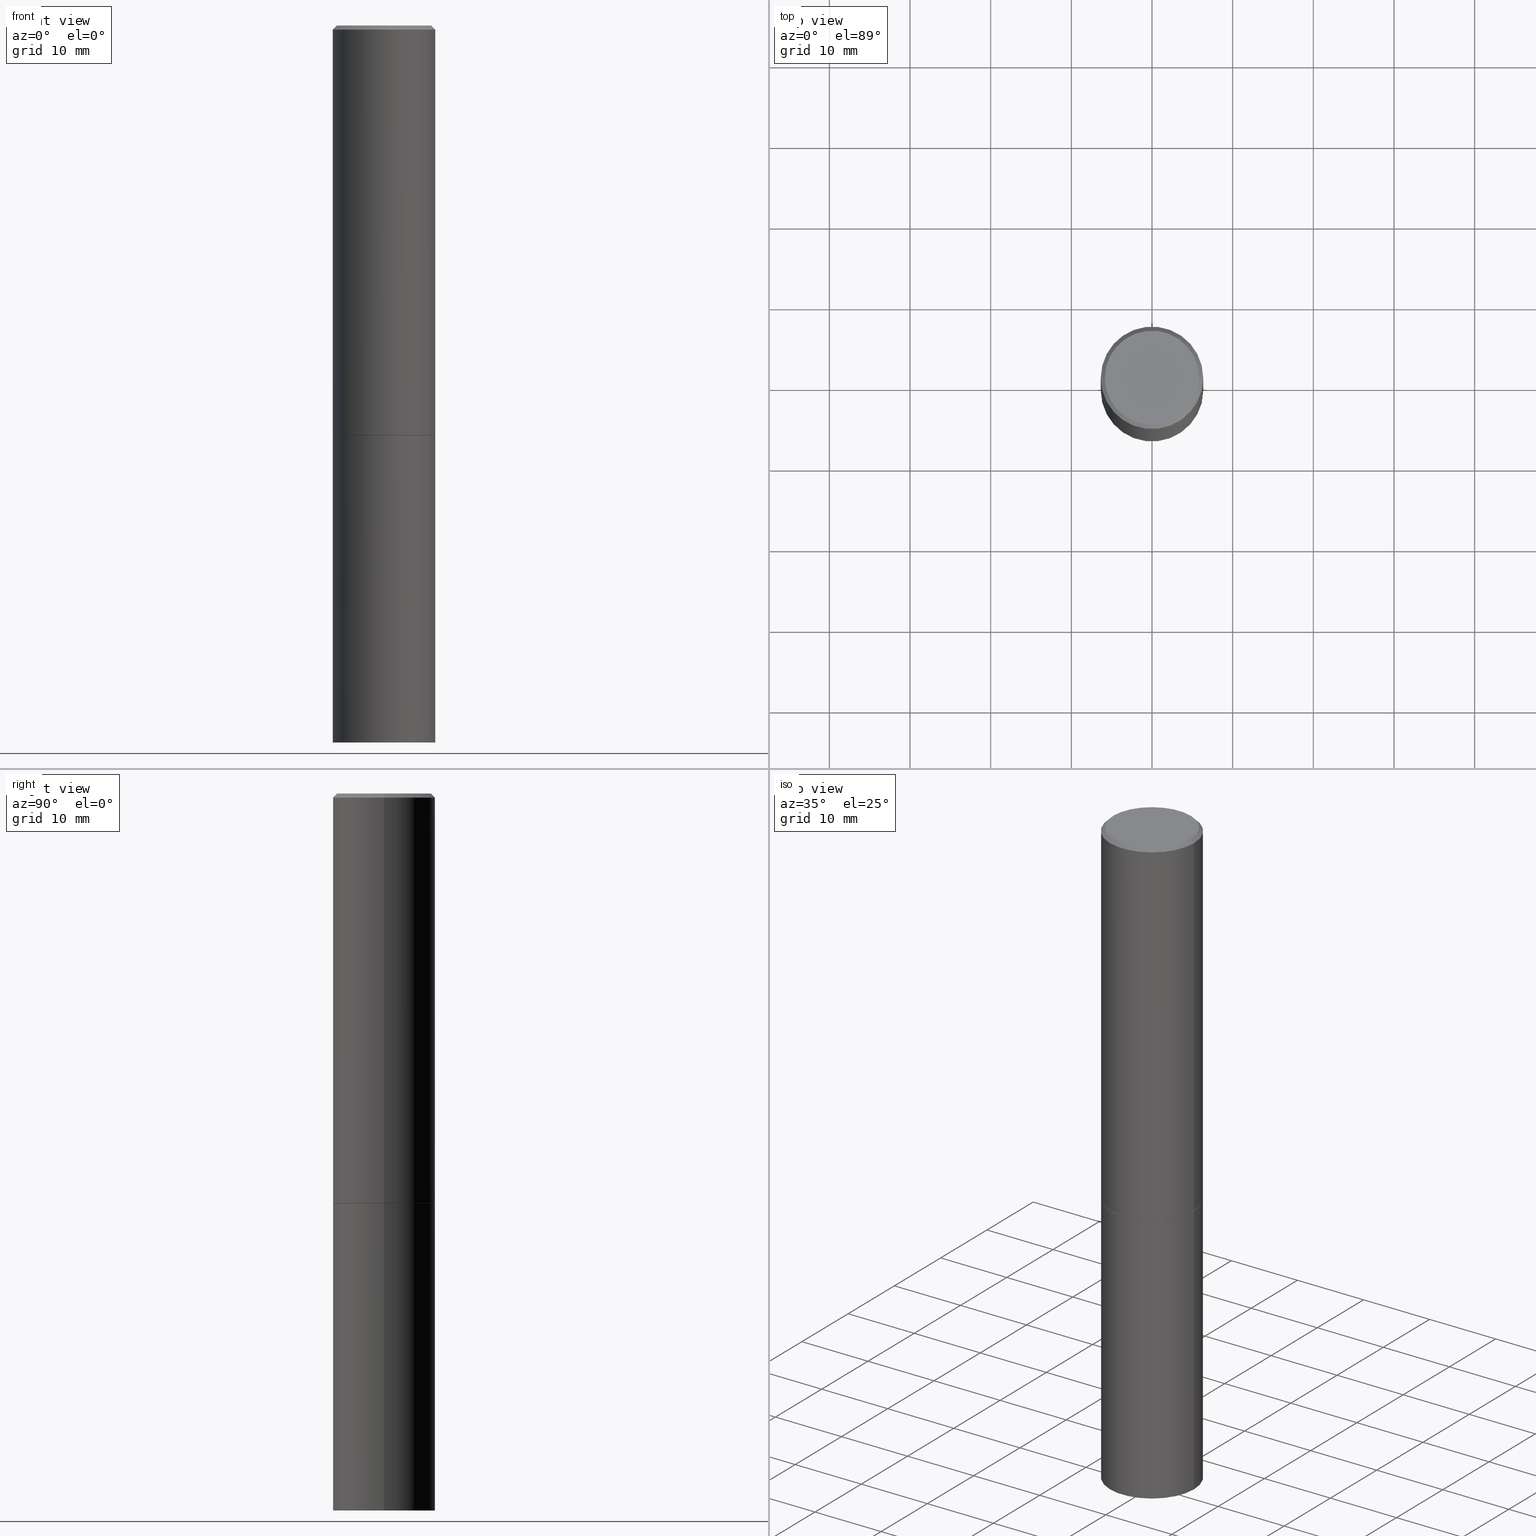
[diagram: canonical four-view strip — front | top / right | iso, engineering-drawing reading convention]
A machine part, canonical four-view strip (front | top / right | iso — engineering-drawing reading convention). The complete STEP part file that produces these views, byte-faithful:
ISO-10303-21;
HEADER;
FILE_DESCRIPTION (( 'STEP AP203' ),
    '1' );
FILE_NAME ('37508.STEP',
    '2024-02-27T22:02:45',
    ( '' ),
    ( '' ),
    'SwSTEP 2.0',
    'SolidWorks 2023',
    '' );
FILE_SCHEMA (( 'CONFIG_CONTROL_DESIGN' ));
ENDSEC;

DATA;
#1 = AXIS2_PLACEMENT_3D ( 'NONE', #301, #50, #27 ) ;
#2 = CARTESIAN_POINT ( 'NONE',  ( 4.890937612370288047E-31, -6.982962677686311331E-17, -0.02000000000000005940 ) ) ;
#3 = APPROVAL ( #162, 'UNSPECIFIED' ) ;
#4 = LINE ( 'NONE', #314, #134 ) ;
#5 = CARTESIAN_POINT ( 'NONE',  ( 0.000000000000000000, 0.000000000000000000, 0.000000000000000000 ) ) ;
#6 = MANIFOLD_SOLID_BREP ( 'Body-Move/Copy2[1]', #326 ) ;
#7 = AXIS2_PLACEMENT_3D ( 'NONE', #220, #305, #144 ) ;
#8 = PLANE ( 'NONE',  #49 ) ;
#9 = DATE_AND_TIME ( #112, #260 ) ;
#10 = COORDINATED_UNIVERSAL_TIME_OFFSET ( 5, 0, .BEHIND. ) ;
#11 = EDGE_CURVE ( 'NONE', #14, #74, #240, .T. ) ;
#12 = APPLICATION_PROTOCOL_DEFINITION ( 'international standard', 'config_control_design', 1994, #93 ) ;
#13 = ORIENTED_EDGE ( 'NONE', *, *, #146, .T. ) ;
#14 = VERTEX_POINT ( 'NONE', #145 ) ;
#15 = CALENDAR_DATE ( 2024, 27, 2 ) ;
#16 = ORIENTED_EDGE ( 'NONE', *, *, #70, .F. ) ;
#17 = UNCERTAINTY_MEASURE_WITH_UNIT (LENGTH_MEASURE( 1.000000000000000082E-05 ), #297, 'distance_accuracy_value', 'NONE');
#18 = CARTESIAN_POINT ( 'NONE',  ( 0.000000000000000000, 0.000000000000000000, 0.000000000000000000 ) ) ;
#19 = VERTEX_POINT ( 'NONE', #248 ) ;
#20 = PRODUCT ( '37508', '37508', '', ( #44 ) ) ;
#21 = CIRCLE ( 'NONE', #122, 0.2489999999999999991 ) ;
#22 = ORIENTED_EDGE ( 'NONE', *, *, #293, .F. ) ;
#23 = EDGE_CURVE ( 'NONE', #187, #317, #350, .T. ) ;
#24 = FACE_OUTER_BOUND ( 'NONE', #183, .T. ) ;
#25 = CARTESIAN_POINT ( 'NONE',  ( 4.890937612370272633E-29, -6.982962677686290376E-15, -1.999999999999999778 ) ) ;
#26 = APPROVAL_PERSON_ORGANIZATION ( #103, #64, #73 ) ;
#27 = DIRECTION ( 'NONE',  ( 1.000000000000000000, -6.982962677686266711E-15, 0.000000000000000000 ) ) ;
#28 = ADVANCED_FACE ( 'NONE', ( #113 ), #274, .T. ) ;
#29 = DIRECTION ( 'NONE',  ( -2.445468806185136877E-29, 3.491481338843145188E-15, 1.000000000000000000 ) ) ;
#30 = CARTESIAN_POINT ( 'NONE',  ( 8.559140821647976968E-29, -1.222018468595100934E-14, -3.500000000000000000 ) ) ;
#31 = AXIS2_PLACEMENT_3D ( 'NONE', #335, #245, #361 ) ;
#32 = DIRECTION ( 'NONE',  ( 1.000000000000000000, -6.982962677686267499E-15, 4.876225828469313926E-29 ) ) ;
#33 = FACE_OUTER_BOUND ( 'NONE', #235, .T. ) ;
#34 = DIRECTION ( 'NONE',  ( -2.445468806185136597E-29, 3.491481338843145583E-15, 1.000000000000000000 ) ) ;
#35 = FACE_OUTER_BOUND ( 'NONE', #217, .T. ) ;
#36 = AXIS2_PLACEMENT_3D ( 'NONE', #181, #118, #228 ) ;
#37 = EDGE_CURVE ( 'NONE', #72, #74, #195, .T. ) ;
#38 = DIMENSIONAL_EXPONENTS ( 1.000000000000000000, 0.000000000000000000, 0.000000000000000000, 0.000000000000000000, 0.000000000000000000, 0.000000000000000000, 0.000000000000000000 ) ;
#39 = ORIENTED_EDGE ( 'NONE', *, *, #321, .F. ) ;
#40 = ORIENTED_EDGE ( 'NONE', *, *, #115, .F. ) ;
#41 = ORGANIZATION ( 'UNSPECIFIED', 'UNSPECIFIED', '' ) ;
#42 = VERTEX_POINT ( 'NONE', #56 ) ;
#43 = APPROVAL_ROLE ( '' ) ;
#44 = MECHANICAL_CONTEXT ( 'NONE', #55, 'mechanical' ) ;
#45 = ORIENTED_EDGE ( 'NONE', *, *, #257, .F. ) ;
#46 = EDGE_LOOP ( 'NONE', ( #348, #97 ) ) ;
#47 = EDGE_CURVE ( 'NONE', #117, #19, #289, .T. ) ;
#48 = DATE_TIME_ROLE ( 'classification_date' ) ;
#49 = AXIS2_PLACEMENT_3D ( 'NONE', #204, #288, #150 ) ;
#50 = DIRECTION ( 'NONE',  ( -2.445468806185136597E-29, 3.491481338843145583E-15, 1.000000000000000000 ) ) ;
#51 = DIRECTION ( 'NONE',  ( 0.7071067811865469066, -7.319954787623254468E-15, -0.7071067811865482389 ) ) ;
#52 = SECURITY_CLASSIFICATION_LEVEL ( 'unclassified' ) ;
#53 = CARTESIAN_POINT ( 'NONE',  ( 0.2500000000000000000, -1.745740669421566678E-15, 1.219044193948983948E-29 ) ) ;
#54 = CC_DESIGN_APPROVAL ( #213, ( #352 ) ) ;
#55 = APPLICATION_CONTEXT ( 'configuration controlled 3d designs of mechanical parts and assemblies' ) ;
#56 = CARTESIAN_POINT ( 'NONE',  ( 0.2500000000000000000, -1.396592535537257602E-14, -3.500000000000000000 ) ) ;
#57 = CARTESIAN_POINT ( 'NONE',  ( 0.2499999999999998057, -1.784954126219744611E-15, -0.02000000000000005940 ) ) ;
#58 = DIRECTION ( 'NONE',  ( 2.445468806185136597E-29, -3.491481338843145583E-15, -1.000000000000000000 ) ) ;
#59 = AXIS2_PLACEMENT_3D ( 'NONE', #315, #116, #67 ) ;
#60 = FACE_OUTER_BOUND ( 'NONE', #46, .T. ) ;
#61 = ORIENTED_EDGE ( 'NONE', *, *, #81, .F. ) ;
#62 = DIRECTION ( 'NONE',  ( 1.000000000000000000, -6.982962677686266711E-15, 0.000000000000000000 ) ) ;
#63 = VERTEX_POINT ( 'NONE', #306 ) ;
#64 = APPROVAL ( #355, 'UNSPECIFIED' ) ;
#65 = FACE_OUTER_BOUND ( 'NONE', #119, .T. ) ;
#66 = PRODUCT_DEFINITION_SHAPE ( 'NONE', 'NONE',  #91 ) ;
#67 = DIRECTION ( 'NONE',  ( 1.000000000000000000, -6.982962677686266711E-15, 0.000000000000000000 ) ) ;
#68 = AXIS2_PLACEMENT_3D ( 'NONE', #92, #34, #261 ) ;
#69 = PERSON_AND_ORGANIZATION ( #322, #41 ) ;
#70 = EDGE_CURVE ( 'NONE', #63, #89, #281, .T. ) ;
#71 = LENGTH_MEASURE_WITH_UNIT ( LENGTH_MEASURE( 0.02539999999999999897 ), #351 );
#72 = VERTEX_POINT ( 'NONE', #176 ) ;
#73 = APPROVAL_ROLE ( '' ) ;
#74 = VERTEX_POINT ( 'NONE', #140 ) ;
#75 = PLANE ( 'NONE',  #242 ) ;
#76 = VECTOR ( 'NONE', #172, 39.37007874015748854 ) ;
#77 = CALENDAR_DATE ( 2024, 27, 2 ) ;
#78 = ORIENTED_EDGE ( 'NONE', *, *, #137, .F. ) ;
#79 = ORIENTED_EDGE ( 'NONE', *, *, #263, .T. ) ;
#80 = LINE ( 'NONE', #85, #76 ) ;
#81 = EDGE_CURVE ( 'NONE', #74, #89, #362, .T. ) ;
#82 = CONICAL_SURFACE ( 'NONE', #210, 0.2489999999999999991, 0.7853981633974141952 ) ;
#83 = DIRECTION ( 'NONE',  ( -2.445468806185136597E-29, 3.491481338843145583E-15, 1.000000000000000000 ) ) ;
#84 = CARTESIAN_POINT ( 'NONE',  ( -1.043851414335219820E-46, 1.490343170380447200E-32, 4.268512490100411279E-18 ) ) ;
#85 = CARTESIAN_POINT ( 'NONE',  ( -0.2489999999999999991, -5.213711265643640920E-15, -1.999999999999999778 ) ) ;
#86 = LINE ( 'NONE', #282, #133 ) ;
#87 = DIRECTION ( 'NONE',  ( -2.445468806185136597E-29, 3.491481338843145583E-15, 1.000000000000000000 ) ) ;
#88 = PLANE ( 'NONE',  #236 ) ;
#89 = VERTEX_POINT ( 'NONE', #279 ) ;
#90 = DESIGN_CONTEXT ( 'detailed design', #93, 'design' ) ;
#91 = PRODUCT_DEFINITION ( 'UNKNOWN', '', #352, #90 ) ;
#92 = CARTESIAN_POINT ( 'NONE',  ( 4.888492143564087030E-29, -6.979471196347446580E-15, -1.998999999999999666 ) ) ;
#93 = APPLICATION_CONTEXT ( 'configuration controlled 3d designs of mechanical parts and assemblies' ) ;
#94 = ORIENTED_EDGE ( 'NONE', *, *, #219, .T. ) ;
#95 = APPROVAL_PERSON_ORGANIZATION ( #155, #213, #43 ) ;
#96 = DIRECTION ( 'NONE',  ( 0.000000000000000000, 0.000000000000000000, 1.000000000000000000 ) ) ;
#97 = ORIENTED_EDGE ( 'NONE', *, *, #257, .T. ) ;
#98 = DIRECTION ( 'NONE',  ( 1.000000000000000000, -6.982962677686270655E-15, 0.000000000000000000 ) ) ;
#99 = CALENDAR_DATE ( 2024, 27, 2 ) ;
#100 = DIRECTION ( 'NONE',  ( -2.445468806185136597E-29, 3.491481338843145583E-15, 1.000000000000000000 ) ) ;
#101 = AXIS2_PLACEMENT_3D ( 'NONE', #18, #96, #211 ) ;
#102 = ORIENTED_EDGE ( 'NONE', *, *, #270, .T. ) ;
#103 = PERSON_AND_ORGANIZATION ( #322, #41 ) ;
#104 = ORIENTED_EDGE ( 'NONE', *, *, #163, .T. ) ;
#105 = DIRECTION ( 'NONE',  ( -2.445468806185136877E-29, 3.491481338843145188E-15, 1.000000000000000000 ) ) ;
#106 = CARTESIAN_POINT ( 'NONE',  ( 4.890937612370272633E-29, -6.982962677686290376E-15, -1.999999999999999778 ) ) ;
#107 = AXIS2_PLACEMENT_3D ( 'NONE', #207, #313, #62 ) ;
#108 = PERSON_AND_ORGANIZATION_ROLE ( 'design_supplier' ) ;
#109 = FACE_OUTER_BOUND ( 'NONE', #132, .T. ) ;
#110 = PERSON_AND_ORGANIZATION_ROLE ( 'classification_officer' ) ;
#111 = DIRECTION ( 'NONE',  ( -2.445468806185136597E-29, 3.491481338843145583E-15, 1.000000000000000000 ) ) ;
#112 = CALENDAR_DATE ( 2024, 27, 2 ) ;
#113 = FACE_OUTER_BOUND ( 'NONE', #330, .T. ) ;
#114 = CC_DESIGN_SECURITY_CLASSIFICATION ( #291, ( #352 ) ) ;
#115 = EDGE_CURVE ( 'NONE', #317, #72, #80, .T. ) ;
#116 = DIRECTION ( 'NONE',  ( -2.445468806185136597E-29, 3.491481338843145583E-15, 1.000000000000000000 ) ) ;
#117 = VERTEX_POINT ( 'NONE', #276 ) ;
#118 = DIRECTION ( 'NONE',  ( -2.445468806185136597E-29, 3.491481338843145583E-15, 1.000000000000000000 ) ) ;
#119 = EDGE_LOOP ( 'NONE', ( #262, #79, #241, #61 ) ) ;
#120 = CC_DESIGN_DATE_AND_TIME_ASSIGNMENT ( #186, #292, ( #91 ) ) ;
#121 = CIRCLE ( 'NONE', #215, 0.2299999999999997602 ) ;
#122 = AXIS2_PLACEMENT_3D ( 'NONE', #25, #138, #360 ) ;
#123 = DIRECTION ( 'NONE',  ( -2.438088387897960049E-29, 3.491481338843145188E-15, 1.000000000000000000 ) ) ;
#124 = ORIENTED_EDGE ( 'NONE', *, *, #146, .F. ) ;
#125 = AXIS2_PLACEMENT_3D ( 'NONE', #5, #87, #184 ) ;
#126 = PERSON_AND_ORGANIZATION_ROLE ( 'design_owner' ) ;
#127 = EDGE_LOOP ( 'NONE', ( #136, #192, #358, #294 ) ) ;
#128 = CARTESIAN_POINT ( 'NONE',  ( 1.745740669421652072E-15, 0.2499999999999877598, -3.500000000000000888 ) ) ;
#129 = EDGE_LOOP ( 'NONE', ( #40, #13, #102, #273 ) ) ;
#130 = EDGE_CURVE ( 'NONE', #63, #14, #121, .T. ) ;
#131 = APPROVAL_ROLE ( '' ) ;
#132 = EDGE_LOOP ( 'NONE', ( #229, #151, #296, #156 ) ) ;
#133 = VECTOR ( 'NONE', #29, 39.37007874015748143 ) ;
#134 = VECTOR ( 'NONE', #227, 39.37007874015748854 ) ;
#135 = APPROVAL_DATE_TIME ( #325, #64 ) ;
#136 = ORIENTED_EDGE ( 'NONE', *, *, #23, .T. ) ;
#137 = EDGE_CURVE ( 'NONE', #295, #89, #86, .T. ) ;
#138 = DIRECTION ( 'NONE',  ( -2.445468806185136597E-29, 3.491481338843145583E-15, 1.000000000000000000 ) ) ;
#139 = CYLINDRICAL_SURFACE ( 'NONE', #31, 0.2500000000000000000 ) ;
#140 = CARTESIAN_POINT ( 'NONE',  ( -0.2499999999999998057, 1.675911042644702196E-15, -0.02000000000000005940 ) ) ;
#141 = AXIS2_PLACEMENT_3D ( 'NONE', #198, #331, #224 ) ;
#142 = AXIS2_PLACEMENT_3D ( 'NONE', #286, #152, #247 ) ;
#143 = PERSON_AND_ORGANIZATION ( #322, #41 ) ;
#144 = DIRECTION ( 'NONE',  ( 1.000000000000000000, -6.982962677686266711E-15, 4.876176775795935793E-29 ) ) ;
#145 = CARTESIAN_POINT ( 'NONE',  ( -0.2299999999999997602, 1.640996229256270941E-15, 4.268512490089056766E-18 ) ) ;
#146 = EDGE_CURVE ( 'NONE', #317, #187, #21, .T. ) ;
#147 = LOCAL_TIME ( 17, 2, 45.00000000000000000, #10 ) ;
#148 = EDGE_CURVE ( 'NONE', #189, #19, #363, .T. ) ;
#149 = DIRECTION ( 'NONE',  ( 1.000000000000000000, -6.982962677686266711E-15, 0.000000000000000000 ) ) ;
#150 = DIRECTION ( 'NONE',  ( -1.000000000000000000, 6.982962677686265922E-15, -4.876176775795935793E-29 ) ) ;
#151 = ORIENTED_EDGE ( 'NONE', *, *, #148, .T. ) ;
#152 = DIRECTION ( 'NONE',  ( 2.445468806185136597E-29, -3.491481338843145583E-15, -1.000000000000000000 ) ) ;
#153 = AXIS2_PLACEMENT_3D ( 'NONE', #154, #208, #255 ) ;
#154 = CARTESIAN_POINT ( 'NONE',  ( 1.745740669421615390E-15, 0.2499999999999930334, -2.000000000000000444 ) ) ;
#155 = PERSON_AND_ORGANIZATION ( #322, #41 ) ;
#156 = ORIENTED_EDGE ( 'NONE', *, *, #196, .F. ) ;
#157 = CC_DESIGN_PERSON_AND_ORGANIZATION_ASSIGNMENT ( #264, #319, ( #91 ) ) ;
#158 = COORDINATED_UNIVERSAL_TIME_OFFSET ( 5, 0, .BEHIND. ) ;
#159 = ORIENTED_EDGE ( 'NONE', *, *, #148, .F. ) ;
#160 = CIRCLE ( 'NONE', #327, 0.2500000000000000000 ) ;
#161 = ORIENTED_EDGE ( 'NONE', *, *, #11, .F. ) ;
#162 = APPROVAL_STATUS ( 'not_yet_approved' ) ;
#163 = EDGE_CURVE ( 'NONE', #89, #74, #318, .T. ) ;
#164 = COORDINATED_UNIVERSAL_TIME_OFFSET ( 5, 0, .BEHIND. ) ;
#165 = ORIENTED_EDGE ( 'NONE', *, *, #321, .T. ) ;
#166 =( NAMED_UNIT ( * ) SI_UNIT ( $, .STERADIAN. ) SOLID_ANGLE_UNIT ( ) );
#167 = EDGE_LOOP ( 'NONE', ( #218, #267, #104, #161 ) ) ;
#168 = CLOSED_SHELL ( 'NONE', ( #251, #28, #316, #212, #275, #309, #202, #209 ) ) ;
#169 = CC_DESIGN_APPROVAL ( #64, ( #91 ) ) ;
#170 = ORIENTED_EDGE ( 'NONE', *, *, #23, .F. ) ;
#171 = CARTESIAN_POINT ( 'NONE',  ( 0.000000000000000000, 0.000000000000000000, 0.000000000000000000 ) ) ;
#172 = DIRECTION ( 'NONE',  ( -0.7071067811865232589, 7.493145998870265808E-15, 0.7071067811865715536 ) ) ;
#173 = DIRECTION ( 'NONE',  ( -2.445468806185136877E-29, 3.491481338843145188E-15, 1.000000000000000000 ) ) ;
#174 = VECTOR ( 'NONE', #366, 39.37007874015748143 ) ;
#175 = DIRECTION ( 'NONE',  ( -2.445468806185136597E-29, 3.491481338843145583E-15, 1.000000000000000000 ) ) ;
#176 = CARTESIAN_POINT ( 'NONE',  ( -0.2500000000000000000, -1.748293572161903489E-15, -1.998999999999999666 ) ) ;
#177 = ADVANCED_FACE ( 'NONE', ( #109 ), #223, .T. ) ;
#178 = DIRECTION ( 'NONE',  ( -1.000000000000000000, 6.982962677686266711E-15, 0.000000000000000000 ) ) ;
#179 = CIRCLE ( 'NONE', #36, 0.2500000000000000000 ) ;
#180 = ADVANCED_FACE ( 'NONE', ( #24 ), #139, .T. ) ;
#181 = CARTESIAN_POINT ( 'NONE',  ( 8.559140821647976968E-29, -1.222018468595100934E-14, -3.500000000000000000 ) ) ;
#182 = FACE_OUTER_BOUND ( 'NONE', #167, .T. ) ;
#183 = EDGE_LOOP ( 'NONE', ( #159, #165, #205, #45 ) ) ;
#184 = DIRECTION ( 'NONE',  ( 1.000000000000000000, -6.982962677686266711E-15, 4.876176775795935793E-29 ) ) ;
#185 = LOCAL_TIME ( 17, 2, 45.00000000000000000, #164 ) ;
#186 = DATE_AND_TIME ( #77, #253 ) ;
#187 = VERTEX_POINT ( 'NONE', #222 ) ;
#188 = APPROVAL_STATUS ( 'not_yet_approved' ) ;
#189 = VERTEX_POINT ( 'NONE', #246 ) ;
#190 = ORIENTED_EDGE ( 'NONE', *, *, #37, .T. ) ;
#191 = ADVANCED_BREP_SHAPE_REPRESENTATION ( '37508', ( #6, #250, #101 ), #206 ) ;
#192 = ORIENTED_EDGE ( 'NONE', *, *, #115, .T. ) ;
#193 = VECTOR ( 'NONE', #51, 39.37007874015748143 ) ;
#194 = CARTESIAN_POINT ( 'NONE',  ( -0.2500000000000000000, 1.776356839400250465E-15, -1.229733772563726445E-29 ) ) ;
#195 = LINE ( 'NONE', #302, #252 ) ;
#196 = EDGE_CURVE ( 'NONE', #42, #117, #303, .T. ) ;
#197 = DATE_AND_TIME ( #15, #185 ) ;
#198 = CARTESIAN_POINT ( 'NONE',  ( 4.890937612370288047E-31, -6.982962677686311331E-17, -0.02000000000000005940 ) ) ;
#199 = DIRECTION ( 'NONE',  ( -2.445468806185136877E-29, 3.491481338843145188E-15, 1.000000000000000000 ) ) ;
#200 = CIRCLE ( 'NONE', #59, 0.2500000000000000000 ) ;
#201 = CARTESIAN_POINT ( 'NONE',  ( 4.890937612370272633E-29, -6.982962677686290376E-15, -1.999999999999999778 ) ) ;
#202 = ADVANCED_FACE ( 'NONE', ( #33 ), #88, .F. ) ;
#203 = CC_DESIGN_PERSON_AND_ORGANIZATION_ASSIGNMENT ( #277, #110, ( #291 ) ) ;
#204 = CARTESIAN_POINT ( 'NONE',  ( 1.606081415867839490E-15, 0.2299999999999997602, -8.009064516888724897E-16 ) ) ;
#205 = ORIENTED_EDGE ( 'NONE', *, *, #196, .T. ) ;
#206 =( GEOMETRIC_REPRESENTATION_CONTEXT ( 3 ) GLOBAL_UNCERTAINTY_ASSIGNED_CONTEXT ( ( #17 ) ) GLOBAL_UNIT_ASSIGNED_CONTEXT ( ( #297, #359, #166 ) ) REPRESENTATION_CONTEXT ( 'NONE', 'WORKASPACE' ) );
#207 = CARTESIAN_POINT ( 'NONE',  ( 4.890937612370272633E-29, -6.982962677686290376E-15, -1.999999999999999778 ) ) ;
#208 = DIRECTION ( 'NONE',  ( 2.438088387897960049E-29, -3.491481338843145188E-15, -1.000000000000000000 ) ) ;
#209 = ADVANCED_FACE ( 'NONE', ( #35 ), #8, .F. ) ;
#210 = AXIS2_PLACEMENT_3D ( 'NONE', #347, #234, #149 ) ;
#211 = DIRECTION ( 'NONE',  ( 1.000000000000000000, 0.000000000000000000, 0.000000000000000000 ) ) ;
#212 = ADVANCED_FACE ( 'NONE', ( #308 ), #226, .T. ) ;
#213 = APPROVAL ( #188, 'UNSPECIFIED' ) ;
#214 = CARTESIAN_POINT ( 'NONE',  ( 4.888492143564087030E-29, -6.979471196347446580E-15, -1.998999999999999666 ) ) ;
#215 = AXIS2_PLACEMENT_3D ( 'NONE', #84, #175, #249 ) ;
#216 = DIRECTION ( 'NONE',  ( -2.445468806185136597E-29, 3.491481338843145583E-15, 1.000000000000000000 ) ) ;
#217 = EDGE_LOOP ( 'NONE', ( #94, #342 ) ) ;
#218 = ORIENTED_EDGE ( 'NONE', *, *, #130, .F. ) ;
#219 = EDGE_CURVE ( 'NONE', #14, #63, #266, .T. ) ;
#220 = CARTESIAN_POINT ( 'NONE',  ( 0.000000000000000000, 0.000000000000000000, 0.000000000000000000 ) ) ;
#221 = AXIS2_PLACEMENT_3D ( 'NONE', #2, #58, #178 ) ;
#222 = CARTESIAN_POINT ( 'NONE',  ( 0.2489999999999999991, -8.721720384430171040E-15, -1.999999999999999778 ) ) ;
#223 = CYLINDRICAL_SURFACE ( 'NONE', #332, 0.2500000000000000000 ) ;
#224 = DIRECTION ( 'NONE',  ( 1.000000000000000000, -6.982962677686266711E-15, 0.000000000000000000 ) ) ;
#225 = DIRECTION ( 'NONE',  ( 1.000000000000000000, -6.982962677686266711E-15, 0.000000000000000000 ) ) ;
#226 = CONICAL_SURFACE ( 'NONE', #221, 0.2499999999999998057, 0.7853981633974473908 ) ;
#227 = DIRECTION ( 'NONE',  ( 0.7071067811865232589, -2.468850131082003836E-15, 0.7071067811865715536 ) ) ;
#228 = DIRECTION ( 'NONE',  ( 1.000000000000000000, -6.982962677686270655E-15, 0.000000000000000000 ) ) ;
#229 = ORIENTED_EDGE ( 'NONE', *, *, #293, .T. ) ;
#230 = AXIS2_PLACEMENT_3D ( 'NONE', #232, #283, #32 ) ;
#231 = APPROVAL_DATE_TIME ( #197, #213 ) ;
#232 = CARTESIAN_POINT ( 'NONE',  ( -1.043851414335219820E-46, 1.490343170380447200E-32, 4.268512490100411279E-18 ) ) ;
#233 = ORIENTED_EDGE ( 'NONE', *, *, #11, .T. ) ;
#234 = DIRECTION ( 'NONE',  ( -2.445468806185136597E-29, 3.491481338843145583E-15, 1.000000000000000000 ) ) ;
#235 = EDGE_LOOP ( 'NONE', ( #170, #124 ) ) ;
#236 = AXIS2_PLACEMENT_3D ( 'NONE', #340, #123, #259 ) ;
#237 = APPROVAL_DATE_TIME ( #354, #3 ) ;
#238 = PRODUCT_RELATED_PRODUCT_CATEGORY ( 'detail', '', ( #20 ) ) ;
#239 = DIRECTION ( 'NONE',  ( 2.438088387897960049E-29, -3.491481338843145188E-15, -1.000000000000000000 ) ) ;
#240 = LINE ( 'NONE', #336, #174 ) ;
#241 = ORIENTED_EDGE ( 'NONE', *, *, #137, .T. ) ;
#242 = AXIS2_PLACEMENT_3D ( 'NONE', #128, #239, #258 ) ;
#243 = LOCAL_TIME ( 17, 2, 45.00000000000000000, #269 ) ;
#244 = DIRECTION ( 'NONE',  ( -2.445468806185136597E-29, 3.491481338843145583E-15, 1.000000000000000000 ) ) ;
#245 = DIRECTION ( 'NONE',  ( -2.445468806185136597E-29, 3.491481338843145583E-15, 1.000000000000000000 ) ) ;
#246 = CARTESIAN_POINT ( 'NONE',  ( -0.2500000000000000000, -7.825216842418397817E-15, -3.500000000000000000 ) ) ;
#247 = DIRECTION ( 'NONE',  ( -1.000000000000000000, 6.982962677686266711E-15, 0.000000000000000000 ) ) ;
#248 = CARTESIAN_POINT ( 'NONE',  ( -0.2500000000000000000, -7.825216842418397817E-15, -1.999999999999999778 ) ) ;
#249 = DIRECTION ( 'NONE',  ( 1.000000000000000000, -6.982962677686267499E-15, 4.876225828469313926E-29 ) ) ;
#250 = MANIFOLD_SOLID_BREP ( 'Body-Move/Copy2[2]', #168 ) ;
#251 = ADVANCED_FACE ( 'NONE', ( #310 ), #82, .T. ) ;
#252 = VECTOR ( 'NONE', #199, 39.37007874015748143 ) ;
#253 = LOCAL_TIME ( 17, 2, 45.00000000000000000, #158 ) ;
#254 = ADVANCED_FACE ( 'NONE', ( #60 ), #256, .F. ) ;
#255 = DIRECTION ( 'NONE',  ( -1.000000000000000000, 6.982962677686265922E-15, -4.876176775795935793E-29 ) ) ;
#256 = PLANE ( 'NONE',  #153 ) ;
#257 = EDGE_CURVE ( 'NONE', #19, #117, #200, .T. ) ;
#258 = DIRECTION ( 'NONE',  ( -1.000000000000000000, 6.982962677686265922E-15, -4.876176775795935793E-29 ) ) ;
#259 = DIRECTION ( 'NONE',  ( 1.000000000000000000, -6.982962677686265922E-15, 4.876176775795935793E-29 ) ) ;
#260 = LOCAL_TIME ( 17, 2, 45.00000000000000000, #280 ) ;
#261 = DIRECTION ( 'NONE',  ( 1.000000000000000000, -6.982962677686266711E-15, 0.000000000000000000 ) ) ;
#262 = ORIENTED_EDGE ( 'NONE', *, *, #37, .F. ) ;
#263 = EDGE_CURVE ( 'NONE', #72, #295, #284, .T. ) ;
#264 = PERSON_AND_ORGANIZATION ( #322, #41 ) ;
#265 = ORIENTED_EDGE ( 'NONE', *, *, #163, .F. ) ;
#266 = CIRCLE ( 'NONE', #230, 0.2299999999999997602 ) ;
#267 = ORIENTED_EDGE ( 'NONE', *, *, #70, .T. ) ;
#268 = PERSON_AND_ORGANIZATION ( #322, #41 ) ;
#269 = COORDINATED_UNIVERSAL_TIME_OFFSET ( 5, 0, .BEHIND. ) ;
#270 = EDGE_CURVE ( 'NONE', #187, #295, #4, .T. ) ;
#271 = VECTOR ( 'NONE', #105, 39.37007874015748143 ) ;
#272 = SHAPE_DEFINITION_REPRESENTATION ( #66, #191 ) ;
#273 = ORIENTED_EDGE ( 'NONE', *, *, #263, .F. ) ;
#274 = CYLINDRICAL_SURFACE ( 'NONE', #7, 0.2499999999999998890 ) ;
#275 = ADVANCED_FACE ( 'NONE', ( #65 ), #343, .T. ) ;
#276 = CARTESIAN_POINT ( 'NONE',  ( 0.2500000000000000000, -8.728703347107857054E-15, -1.999999999999999778 ) ) ;
#277 = PERSON_AND_ORGANIZATION ( #322, #41 ) ;
#278 = CIRCLE ( 'NONE', #300, 0.2500000000000000000 ) ;
#279 = CARTESIAN_POINT ( 'NONE',  ( 0.2499999999999998057, -1.784954126219744611E-15, -0.02000000000000005940 ) ) ;
#280 = COORDINATED_UNIVERSAL_TIME_OFFSET ( 5, 0, .BEHIND. ) ;
#281 = LINE ( 'NONE', #57, #193 ) ;
#282 = CARTESIAN_POINT ( 'NONE',  ( 0.2499999999999998890, -1.745740669421565889E-15, 1.219044193948983388E-29 ) ) ;
#283 = DIRECTION ( 'NONE',  ( -2.445468806185136597E-29, 3.491481338843145583E-15, 1.000000000000000000 ) ) ;
#284 = CIRCLE ( 'NONE', #68, 0.2500000000000000000 ) ;
#285 = CARTESIAN_POINT ( 'NONE',  ( 0.2500000000000000000, -8.725211865769012469E-15, -1.998999999999999666 ) ) ;
#286 = CARTESIAN_POINT ( 'NONE',  ( 4.890937612370288047E-31, -6.982962677686311331E-17, -0.02000000000000005940 ) ) ;
#287 = EDGE_LOOP ( 'NONE', ( #22, #39 ) ) ;
#288 = DIRECTION ( 'NONE',  ( 2.438088387897960049E-29, -3.491481338843145188E-15, -1.000000000000000000 ) ) ;
#289 = CIRCLE ( 'NONE', #344, 0.2500000000000000000 ) ;
#290 = ORIENTED_EDGE ( 'NONE', *, *, #81, .T. ) ;
#291 = SECURITY_CLASSIFICATION ( '', '', #52 ) ;
#292 = DATE_TIME_ROLE ( 'creation_date' ) ;
#293 = EDGE_CURVE ( 'NONE', #42, #189, #179, .T. ) ;
#294 = ORIENTED_EDGE ( 'NONE', *, *, #270, .F. ) ;
#295 = VERTEX_POINT ( 'NONE', #285 ) ;
#296 = ORIENTED_EDGE ( 'NONE', *, *, #47, .F. ) ;
#297 =( CONVERSION_BASED_UNIT ( 'INCH', #71 ) LENGTH_UNIT ( ) NAMED_UNIT ( #38 ) );
#298 = EDGE_LOOP ( 'NONE', ( #16, #356, #233, #290 ) ) ;
#299 = CALENDAR_DATE ( 2024, 27, 2 ) ;
#300 = AXIS2_PLACEMENT_3D ( 'NONE', #214, #100, #323 ) ;
#301 = CARTESIAN_POINT ( 'NONE',  ( 4.890937612370288047E-31, -6.982962677686311331E-17, -0.02000000000000005940 ) ) ;
#302 = CARTESIAN_POINT ( 'NONE',  ( -0.2499999999999998890, 1.776356839400249676E-15, -1.229733772563726025E-29 ) ) ;
#303 = LINE ( 'NONE', #53, #338 ) ;
#304 = AXIS2_PLACEMENT_3D ( 'NONE', #201, #111, #225 ) ;
#305 = DIRECTION ( 'NONE',  ( -2.445468806185136597E-29, 3.491481338843145583E-15, 1.000000000000000000 ) ) ;
#306 = CARTESIAN_POINT ( 'NONE',  ( 0.2299999999999997602, -1.681434332853597631E-15, 4.268512490111905999E-18 ) ) ;
#307 = PERSON_AND_ORGANIZATION_ROLE ( 'creator' ) ;
#308 = FACE_OUTER_BOUND ( 'NONE', #298, .T. ) ;
#309 = ADVANCED_FACE ( 'NONE', ( #345 ), #346, .T. ) ;
#310 = FACE_OUTER_BOUND ( 'NONE', #127, .T. ) ;
#311 = CONICAL_SURFACE ( 'NONE', #142, 0.2499999999999998057, 0.7853981633974473908 ) ;
#312 = CC_DESIGN_PERSON_AND_ORGANIZATION_ASSIGNMENT ( #69, #126, ( #20 ) ) ;
#313 = DIRECTION ( 'NONE',  ( -2.445468806185136597E-29, 3.491481338843145583E-15, 1.000000000000000000 ) ) ;
#314 = CARTESIAN_POINT ( 'NONE',  ( 0.2489999999999999991, -8.721720384430171040E-15, -1.999999999999999778 ) ) ;
#315 = CARTESIAN_POINT ( 'NONE',  ( 4.890937612370272633E-29, -6.982962677686290376E-15, -1.999999999999999778 ) ) ;
#316 = ADVANCED_FACE ( 'NONE', ( #182 ), #311, .T. ) ;
#317 = VERTEX_POINT ( 'NONE', #333 ) ;
#318 = CIRCLE ( 'NONE', #1, 0.2499999999999998057 ) ;
#319 = PERSON_AND_ORGANIZATION_ROLE ( 'creator' ) ;
#320 = ORIENTED_EDGE ( 'NONE', *, *, #337, .T. ) ;
#321 = EDGE_CURVE ( 'NONE', #189, #42, #160, .T. ) ;
#322 = PERSON ( 'UNSPECIFIED', 'UNSPECIFIED', 'UNSPECIFIED', ('UNSPECIFIED'), ('UNSPECIFIED'), ('UNSPECIFIED') ) ;
#323 = DIRECTION ( 'NONE',  ( 1.000000000000000000, -6.982962677686266711E-15, 0.000000000000000000 ) ) ;
#324 = PERSON_AND_ORGANIZATION ( #322, #41 ) ;
#325 = DATE_AND_TIME ( #99, #147 ) ;
#326 = CLOSED_SHELL ( 'NONE', ( #177, #341, #254, #180 ) ) ;
#327 = AXIS2_PLACEMENT_3D ( 'NONE', #30, #216, #98 ) ;
#328 = FACE_OUTER_BOUND ( 'NONE', #287, .T. ) ;
#329 = CC_DESIGN_DATE_AND_TIME_ASSIGNMENT ( #9, #48, ( #291 ) ) ;
#330 = EDGE_LOOP ( 'NONE', ( #320, #190, #265, #78 ) ) ;
#331 = DIRECTION ( 'NONE',  ( -2.445468806185136597E-29, 3.491481338843145583E-15, 1.000000000000000000 ) ) ;
#332 = AXIS2_PLACEMENT_3D ( 'NONE', #171, #83, #364 ) ;
#333 = CARTESIAN_POINT ( 'NONE',  ( -0.2489999999999999991, -5.208412811295418518E-15, -1.999999999999999778 ) ) ;
#334 = APPROVAL_PERSON_ORGANIZATION ( #324, #3, #131 ) ;
#335 = CARTESIAN_POINT ( 'NONE',  ( 0.000000000000000000, 0.000000000000000000, 0.000000000000000000 ) ) ;
#336 = CARTESIAN_POINT ( 'NONE',  ( -0.2499999999999998057, 1.675911042644702196E-15, -0.02000000000000005940 ) ) ;
#337 = EDGE_CURVE ( 'NONE', #295, #72, #278, .T. ) ;
#338 = VECTOR ( 'NONE', #173, 39.37007874015748143 ) ;
#339 = DIRECTION ( 'NONE',  ( 1.000000000000000000, -6.982962677686266711E-15, 0.000000000000000000 ) ) ;
#340 = CARTESIAN_POINT ( 'NONE',  ( 4.890937612370272633E-29, -6.982962677686290376E-15, -1.999999999999999778 ) ) ;
#341 = ADVANCED_FACE ( 'NONE', ( #328 ), #75, .T. ) ;
#342 = ORIENTED_EDGE ( 'NONE', *, *, #130, .T. ) ;
#343 = CYLINDRICAL_SURFACE ( 'NONE', #125, 0.2499999999999998890 ) ;
#344 = AXIS2_PLACEMENT_3D ( 'NONE', #106, #244, #339 ) ;
#345 = FACE_OUTER_BOUND ( 'NONE', #129, .T. ) ;
#346 = CONICAL_SURFACE ( 'NONE', #107, 0.2489999999999999991, 0.7853981633974141952 ) ;
#347 = CARTESIAN_POINT ( 'NONE',  ( 4.890937612370272633E-29, -6.982962677686290376E-15, -1.999999999999999778 ) ) ;
#348 = ORIENTED_EDGE ( 'NONE', *, *, #47, .T. ) ;
#349 = CC_DESIGN_PERSON_AND_ORGANIZATION_ASSIGNMENT ( #268, #307, ( #352 ) ) ;
#350 = CIRCLE ( 'NONE', #304, 0.2489999999999999991 ) ;
#351 =( LENGTH_UNIT ( ) NAMED_UNIT ( * ) SI_UNIT ( $, .METRE. ) );
#352 = PRODUCT_DEFINITION_FORMATION_WITH_SPECIFIED_SOURCE ( 'ANY', '', #20, .NOT_KNOWN. ) ;
#353 = CC_DESIGN_APPROVAL ( #3, ( #291 ) ) ;
#354 = DATE_AND_TIME ( #299, #243 ) ;
#355 = APPROVAL_STATUS ( 'not_yet_approved' ) ;
#356 = ORIENTED_EDGE ( 'NONE', *, *, #219, .F. ) ;
#357 = APPLICATION_PROTOCOL_DEFINITION ( 'international standard', 'config_control_design', 1994, #55 ) ;
#358 = ORIENTED_EDGE ( 'NONE', *, *, #337, .F. ) ;
#359 =( NAMED_UNIT ( * ) PLANE_ANGLE_UNIT ( ) SI_UNIT ( $, .RADIAN. ) );
#360 = DIRECTION ( 'NONE',  ( 1.000000000000000000, -6.982962677686266711E-15, 0.000000000000000000 ) ) ;
#361 = DIRECTION ( 'NONE',  ( 1.000000000000000000, -6.982962677686266711E-15, 4.876176775795935793E-29 ) ) ;
#362 = CIRCLE ( 'NONE', #141, 0.2499999999999998057 ) ;
#363 = LINE ( 'NONE', #194, #271 ) ;
#364 = DIRECTION ( 'NONE',  ( 1.000000000000000000, -6.982962677686266711E-15, 4.876176775795935793E-29 ) ) ;
#365 = CC_DESIGN_PERSON_AND_ORGANIZATION_ASSIGNMENT ( #143, #108, ( #352 ) ) ;
#366 = DIRECTION ( 'NONE',  ( -0.7071067811865469066, 2.468850131082249961E-15, -0.7071067811865482389 ) ) ;
ENDSEC;
END-ISO-10303-21;
